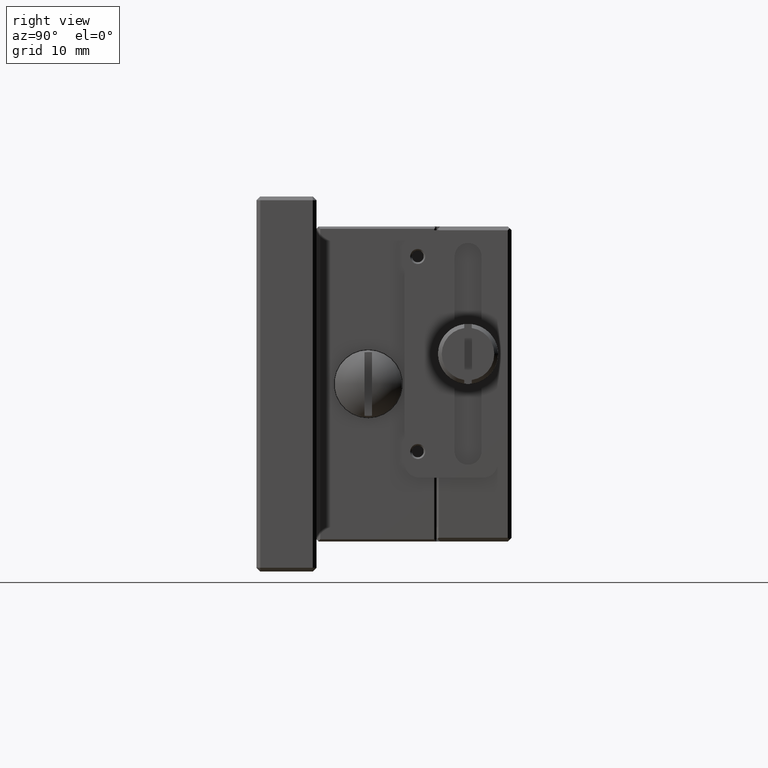
[diagram: clean part render]
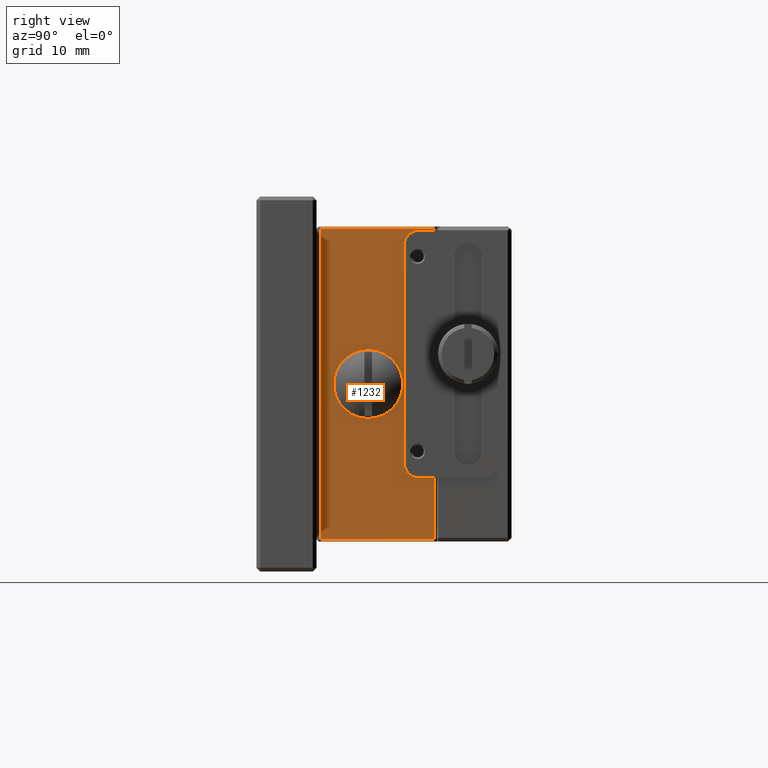
[diagram: same view with one face highlighted and labeled with its STEP entity id]
A machine part, right view. The second image highlights one B-rep face of the part: STEP entity #1232.
In plain terms, the highlighted planar face has unit normal (-1, 0, 0).
Its self-contained STEP definition (entity closure, byte-faithful):
#169 = CARTESIAN_POINT ( 'NONE',  ( 12.50000000000000000, 0.4999999999999997780, 21.00000000000000000 ) ) ;
#320 = ORIENTED_EDGE ( 'NONE', *, *, #7667, .F. ) ;
#457 = EDGE_CURVE ( 'NONE', #6076, #5881, #7796, .T. ) ;
#482 = VERTEX_POINT ( 'NONE', #6259 ) ;
#504 = LINE ( 'NONE', #545, #5894 ) ;
#537 = ORIENTED_EDGE ( 'NONE', *, *, #5347, .F. ) ;
#545 = CARTESIAN_POINT ( 'NONE',  ( 12.50000000000000000, 0.5000000000000000000, 20.69999999999999929 ) ) ;
#629 = EDGE_CURVE ( 'NONE', #7580, #6076, #4260, .T. ) ;
#631 = ORIENTED_EDGE ( 'NONE', *, *, #6840, .F. ) ;
#639 = AXIS2_PLACEMENT_3D ( 'NONE', #2311, #5461, #1635 ) ;
#696 = ORIENTED_EDGE ( 'NONE', *, *, #5741, .F. ) ;
#770 = DIRECTION ( 'NONE',  ( -0.000000000000000000, -0.000000000000000000, -1.000000000000000000 ) ) ;
#838 = CARTESIAN_POINT ( 'NONE',  ( 12.50000000000000000, 11.70000000000000107, 21.00000000000000000 ) ) ;
#934 = CARTESIAN_POINT ( 'NONE',  ( 12.50000000000000000, 11.70000000000000107, 18.50000000000000000 ) ) ;
#1005 = EDGE_CURVE ( 'NONE', #3833, #4893, #6183, .T. ) ;
#1097 = ORIENTED_EDGE ( 'NONE', *, *, #1814, .T. ) ;
#1134 = CARTESIAN_POINT ( 'NONE',  ( 12.50000000000000000, 15.69999999999999929, 20.50000000000000000 ) ) ;
#1143 = FACE_OUTER_BOUND ( 'NONE', #4552, .T. ) ;
#1228 = PLANE ( 'NONE',  #4973 ) ;
#1232 = ADVANCED_FACE ( 'NONE', ( #6960, #1143 ), #1228, .F. ) ;
#1264 = CARTESIAN_POINT ( 'NONE',  ( 12.50000000000000000, 0.5000000000000000000, 21.00000000000000000 ) ) ;
#1560 = CARTESIAN_POINT ( 'NONE',  ( 12.50000000000000000, 13.70000000000000107, -10.50000000000000000 ) ) ;
#1635 = DIRECTION ( 'NONE',  ( 0.000000000000000000, 0.000000000000000000, -1.000000000000000000 ) ) ;
#1802 = DIRECTION ( 'NONE',  ( 0.000000000000000000, 0.000000000000000000, 1.000000000000000000 ) ) ;
#1814 = EDGE_CURVE ( 'NONE', #7580, #5600, #2727, .T. ) ;
#1882 = DIRECTION ( 'NONE',  ( 1.000000000000000000, -0.000000000000000000, -0.000000000000000000 ) ) ;
#1902 = DIRECTION ( 'NONE',  ( -0.000000000000000000, -1.000000000000000000, 0.000000000000000000 ) ) ;
#2311 = CARTESIAN_POINT ( 'NONE',  ( 12.50000000000000000, 6.900000000000000355, 0.000000000000000000 ) ) ;
#2460 = CARTESIAN_POINT ( 'NONE',  ( 12.50000000000000000, 13.70000000000000107, 20.50000000000000000 ) ) ;
#2530 = CIRCLE ( 'NONE', #639, 4.599999999999999645 ) ;
#2660 = ORIENTED_EDGE ( 'NONE', *, *, #457, .F. ) ;
#2681 = VECTOR ( 'NONE', #6511, 1000.000000000000000 ) ;
#2727 = LINE ( 'NONE', #5285, #3106 ) ;
#2910 = DIRECTION ( 'NONE',  ( 1.000000000000000000, -0.000000000000000000, -0.000000000000000000 ) ) ;
#3051 = DIRECTION ( 'NONE',  ( -0.000000000000000000, -1.000000000000000000, 0.000000000000000000 ) ) ;
#3069 = DIRECTION ( 'NONE',  ( 0.000000000000000000, 1.000000000000000000, -0.000000000000000000 ) ) ;
#3106 = VECTOR ( 'NONE', #5995, 1000.000000000000000 ) ;
#3281 = LINE ( 'NONE', #169, #7876 ) ;
#3423 = ORIENTED_EDGE ( 'NONE', *, *, #7273, .T. ) ;
#3459 = VERTEX_POINT ( 'NONE', #5586 ) ;
#3502 = DIRECTION ( 'NONE',  ( 0.000000000000000000, 0.000000000000000000, 1.000000000000000000 ) ) ;
#3649 = CARTESIAN_POINT ( 'NONE',  ( 12.50000000000000000, 13.70000000000000107, 18.50000000000000000 ) ) ;
#3804 = CARTESIAN_POINT ( 'NONE',  ( 12.50000000000000000, 13.70000000000000107, -12.50000000000000000 ) ) ;
#3833 = VERTEX_POINT ( 'NONE', #4700 ) ;
#3947 = DIRECTION ( 'NONE',  ( -0.000000000000000000, -0.000000000000000000, -1.000000000000000000 ) ) ;
#3962 = LINE ( 'NONE', #5946, #7360 ) ;
#3981 = DIRECTION ( 'NONE',  ( -1.000000000000000000, 0.000000000000000000, 0.000000000000000000 ) ) ;
#4093 = CARTESIAN_POINT ( 'NONE',  ( 12.50000000000000000, 15.69999999999999929, -12.50000000000000000 ) ) ;
#4260 = LINE ( 'NONE', #6162, #7252 ) ;
#4416 = DIRECTION ( 'NONE',  ( 0.000000000000000000, 0.000000000000000000, 1.000000000000000000 ) ) ;
#4471 = VERTEX_POINT ( 'NONE', #4093 ) ;
#4524 = CARTESIAN_POINT ( 'NONE',  ( 12.50000000000000000, 0.5000000000000000000, -12.50000000000000000 ) ) ;
#4552 = EDGE_LOOP ( 'NONE', ( #1097, #6546, #3423, #537, #696, #320, #7258, #4796, #2660, #7830 ) ) ;
#4671 = EDGE_LOOP ( 'NONE', ( #631 ) ) ;
#4700 = CARTESIAN_POINT ( 'NONE',  ( 12.50000000000000000, 11.70000000000000107, -10.49999999999999822 ) ) ;
#4796 = ORIENTED_EDGE ( 'NONE', *, *, #6645, .F. ) ;
#4893 = VERTEX_POINT ( 'NONE', #3804 ) ;
#4964 = AXIS2_PLACEMENT_3D ( 'NONE', #3649, #1882, #1802 ) ;
#4973 = AXIS2_PLACEMENT_3D ( 'NONE', #1264, #3981, #4416 ) ;
#5285 = CARTESIAN_POINT ( 'NONE',  ( 12.50000000000000000, 15.69999999999999929, 21.00000000000000000 ) ) ;
#5347 = EDGE_CURVE ( 'NONE', #7291, #482, #6874, .T. ) ;
#5461 = DIRECTION ( 'NONE',  ( 1.000000000000000000, 0.000000000000000000, 0.000000000000000000 ) ) ;
#5586 = CARTESIAN_POINT ( 'NONE',  ( 12.50000000000000000, 0.5000000000000000000, 20.69999999999999929 ) ) ;
#5600 = VERTEX_POINT ( 'NONE', #7485 ) ;
#5648 = VERTEX_POINT ( 'NONE', #8237 ) ;
#5741 = EDGE_CURVE ( 'NONE', #4471, #7291, #3962, .T. ) ;
#5756 = LINE ( 'NONE', #838, #7908 ) ;
#5881 = VERTEX_POINT ( 'NONE', #934 ) ;
#5894 = VECTOR ( 'NONE', #3069, 1000.000000000000000 ) ;
#5925 = DIRECTION ( 'NONE',  ( -0.000000000000000000, -0.000000000000000000, -1.000000000000000000 ) ) ;
#5946 = CARTESIAN_POINT ( 'NONE',  ( 12.50000000000000000, 15.69999999999999929, 21.00000000000000000 ) ) ;
#5995 = DIRECTION ( 'NONE',  ( 0.000000000000000000, 0.000000000000000000, 1.000000000000000000 ) ) ;
#6076 = VERTEX_POINT ( 'NONE', #2460 ) ;
#6162 = CARTESIAN_POINT ( 'NONE',  ( 12.50000000000000000, 0.5000000000000000000, 20.50000000000000000 ) ) ;
#6183 = CIRCLE ( 'NONE', #6317, 2.000000000000000000 ) ;
#6259 = CARTESIAN_POINT ( 'NONE',  ( 12.50000000000000000, 0.5000000000000000000, -20.69999999999999929 ) ) ;
#6317 = AXIS2_PLACEMENT_3D ( 'NONE', #1560, #2910, #3502 ) ;
#6511 = DIRECTION ( 'NONE',  ( 0.000000000000000000, 1.000000000000000000, -0.000000000000000000 ) ) ;
#6546 = ORIENTED_EDGE ( 'NONE', *, *, #7586, .F. ) ;
#6645 = EDGE_CURVE ( 'NONE', #5881, #3833, #5756, .T. ) ;
#6840 = EDGE_CURVE ( 'NONE', #5648, #5648, #2530, .T. ) ;
#6874 = LINE ( 'NONE', #6961, #8030 ) ;
#6960 = FACE_BOUND ( 'NONE', #4671, .T. ) ;
#6961 = CARTESIAN_POINT ( 'NONE',  ( 12.50000000000000000, 0.5000000000000000000, -20.69999999999999929 ) ) ;
#7242 = CARTESIAN_POINT ( 'NONE',  ( 12.50000000000000000, 15.69999999999999929, -20.69999999999999929 ) ) ;
#7252 = VECTOR ( 'NONE', #3051, 1000.000000000000000 ) ;
#7258 = ORIENTED_EDGE ( 'NONE', *, *, #1005, .F. ) ;
#7273 = EDGE_CURVE ( 'NONE', #3459, #482, #3281, .T. ) ;
#7291 = VERTEX_POINT ( 'NONE', #7242 ) ;
#7360 = VECTOR ( 'NONE', #770, 1000.000000000000000 ) ;
#7485 = CARTESIAN_POINT ( 'NONE',  ( 12.50000000000000000, 15.69999999999999929, 20.69999999999999929 ) ) ;
#7580 = VERTEX_POINT ( 'NONE', #1134 ) ;
#7586 = EDGE_CURVE ( 'NONE', #3459, #5600, #504, .T. ) ;
#7667 = EDGE_CURVE ( 'NONE', #4893, #4471, #7747, .T. ) ;
#7747 = LINE ( 'NONE', #4524, #2681 ) ;
#7796 = CIRCLE ( 'NONE', #4964, 1.999999999999998224 ) ;
#7830 = ORIENTED_EDGE ( 'NONE', *, *, #629, .F. ) ;
#7876 = VECTOR ( 'NONE', #3947, 1000.000000000000000 ) ;
#7908 = VECTOR ( 'NONE', #5925, 1000.000000000000000 ) ;
#8030 = VECTOR ( 'NONE', #1902, 1000.000000000000000 ) ;
#8237 = CARTESIAN_POINT ( 'NONE',  ( 12.50000000000000000, 6.900000000000000355, -4.599999999999999645 ) ) ;